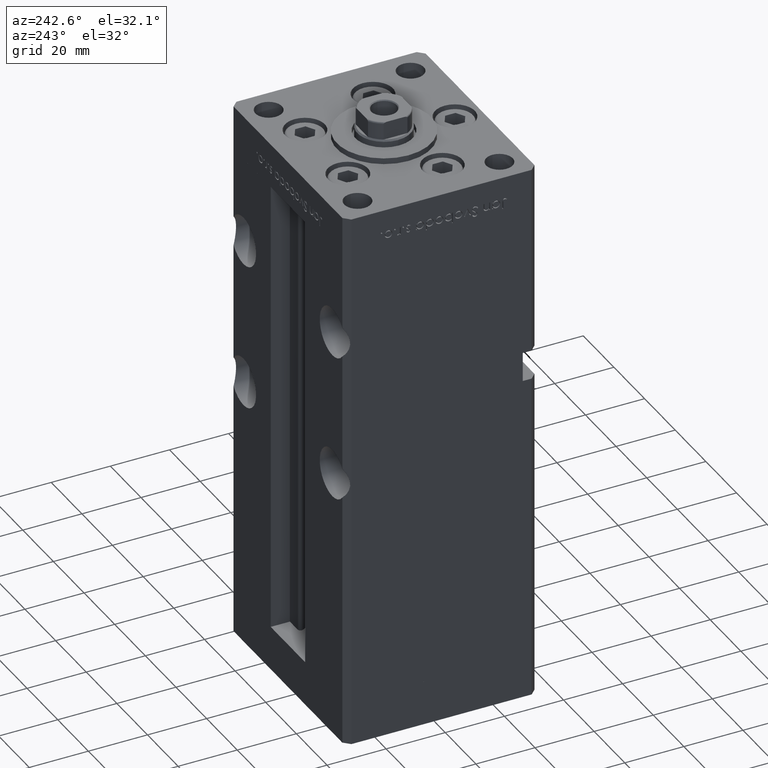
[diagram: clean part render]
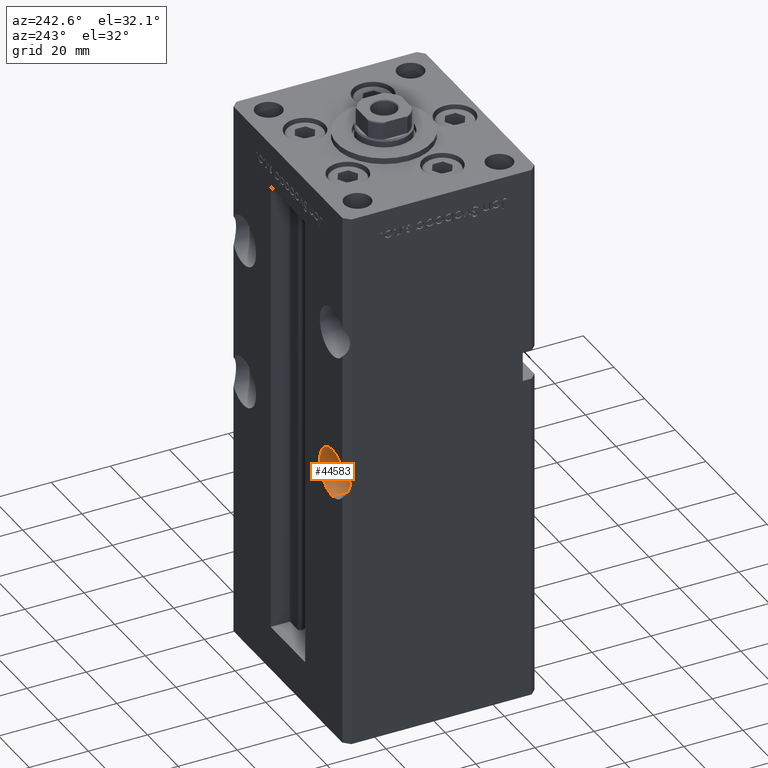
[diagram: same view with one face highlighted and labeled with its STEP entity id]
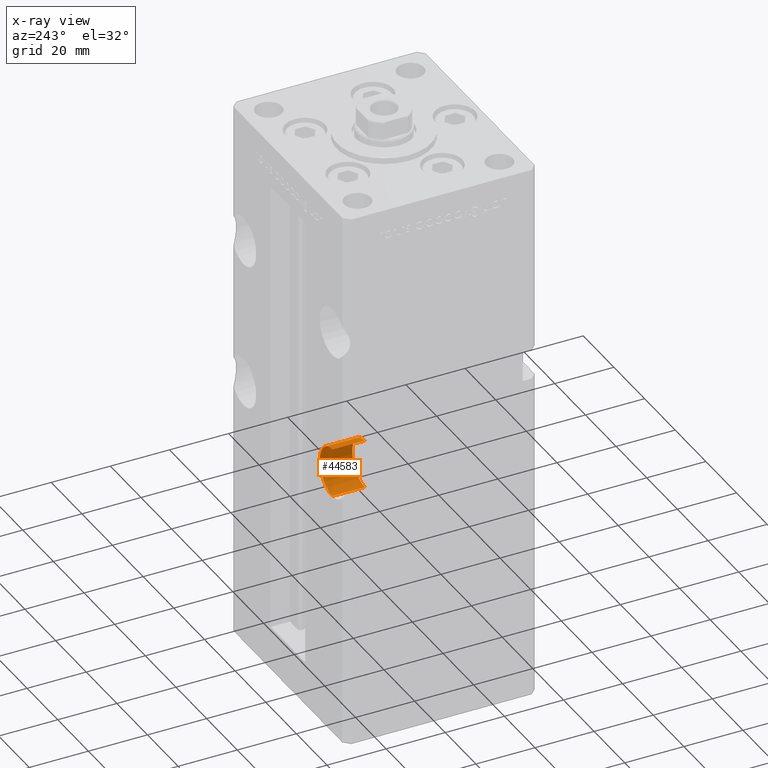
[diagram: x-ray of the same camera — body ghosted, the highlighted face saturated]
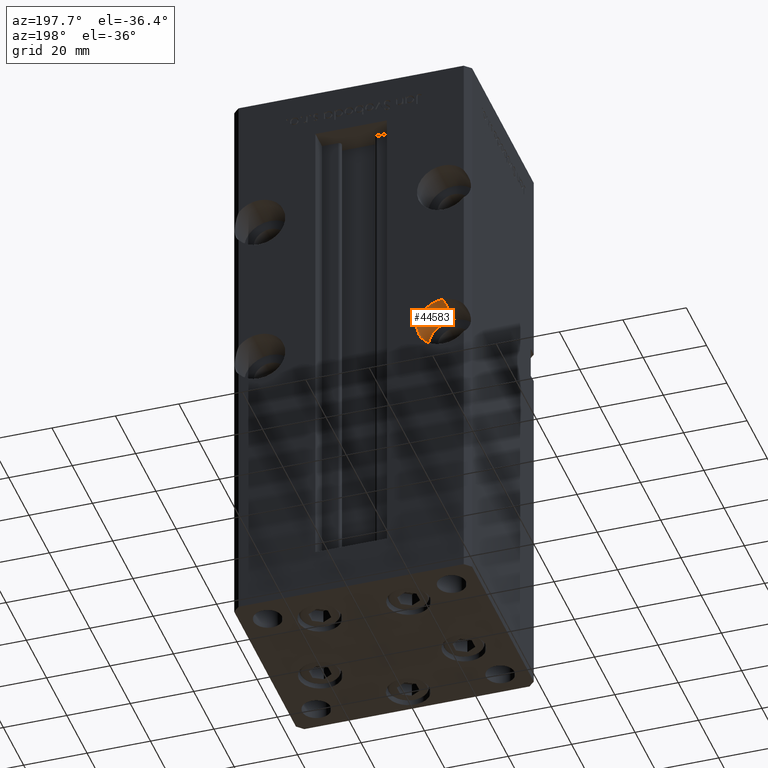
[diagram: same view with one face highlighted and labeled with its STEP entity id]
A machine part, auxiliary view. The second image highlights one B-rep face of the part: STEP entity #44583.
The next image is the same camera in x-ray: the body ghosted, the highlighted face saturated — about 0% of this face is hidden behind the body in this view.
A second angle (auxiliary view) of the same face is appended — the face is thin or edge-on in the first view.
In plain terms, the highlighted cylindrical surface (edge-blend (fillet) strip) has radius 8.25 mm, axis along (0, 1, 0).
Its self-contained STEP definition (entity closure, byte-faithful):
#265 = CYLINDRICAL_SURFACE ( 'NONE', #17140, 8.250000000000007105 ) ;
#2754 = EDGE_CURVE ( 'NONE', #28664, #22703, #35072, .T. ) ;
#3195 = VERTEX_POINT ( 'NONE', #22018 ) ;
#3639 = ORIENTED_EDGE ( 'NONE', *, *, #2754, .T. ) ;
#7450 = ORIENTED_EDGE ( 'NONE', *, *, #24435, .T. ) ;
#10913 = ORIENTED_EDGE ( 'NONE', *, *, #28912, .F. ) ;
#12942 = CIRCLE ( 'NONE', #16374, 8.250000000000007105 ) ;
#15029 = DIRECTION ( 'NONE',  ( 0.000000000000000000, 0.000000000000000000, 1.000000000000000000 ) ) ;
#16186 = EDGE_LOOP ( 'NONE', ( #10913, #21700, #7450, #3639 ) ) ;
#16374 = AXIS2_PLACEMENT_3D ( 'NONE', #31157, #51835, #15029 ) ;
#16804 = VECTOR ( 'NONE', #24151, 1000.000000000000000 ) ;
#17140 = AXIS2_PLACEMENT_3D ( 'NONE', #48692, #32815, #36582 ) ;
#21700 = ORIENTED_EDGE ( 'NONE', *, *, #47748, .F. ) ;
#21999 = VECTOR ( 'NONE', #28798, 1000.000000000000000 ) ;
#22018 = CARTESIAN_POINT ( 'NONE',  ( -28.99999999999999645, 21.50000000000000000, 85.25000000000001421 ) ) ;
#22703 = VERTEX_POINT ( 'NONE', #42974 ) ;
#24151 = DIRECTION ( 'NONE',  ( -0.000000000000000000, 1.000000000000000000, -0.000000000000000000 ) ) ;
#24435 = EDGE_CURVE ( 'NONE', #3195, #28664, #41040, .T. ) ;
#24498 = FACE_OUTER_BOUND ( 'NONE', #16186, .T. ) ;
#26181 = DIRECTION ( 'NONE',  ( 0.000000000000000000, 0.000000000000000000, 1.000000000000000000 ) ) ;
#27374 = AXIS2_PLACEMENT_3D ( 'NONE', #50623, #30729, #26181 ) ;
#28443 = CARTESIAN_POINT ( 'NONE',  ( -28.99999999999999645, 21.50000000000000000, 85.25000000000001421 ) ) ;
#28664 = VERTEX_POINT ( 'NONE', #52068 ) ;
#28798 = DIRECTION ( 'NONE',  ( -0.000000000000000000, 1.000000000000000000, -0.000000000000000000 ) ) ;
#28912 = EDGE_CURVE ( 'NONE', #31162, #22703, #45444, .T. ) ;
#30729 = DIRECTION ( 'NONE',  ( 0.000000000000000000, 1.000000000000000000, 0.000000000000000000 ) ) ;
#31157 = CARTESIAN_POINT ( 'NONE',  ( -28.99999999999999645, 21.50000000000000000, 77.00000000000001421 ) ) ;
#31162 = VERTEX_POINT ( 'NONE', #33807 ) ;
#32815 = DIRECTION ( 'NONE',  ( -0.000000000000000000, 1.000000000000000000, -0.000000000000000000 ) ) ;
#33807 = CARTESIAN_POINT ( 'NONE',  ( -28.99999999999999645, 21.50000000000000000, 68.75000000000000000 ) ) ;
#35072 = CIRCLE ( 'NONE', #27374, 8.250000000000007105 ) ;
#36582 = DIRECTION ( 'NONE',  ( 0.000000000000000000, 0.000000000000000000, 1.000000000000000000 ) ) ;
#41040 = LINE ( 'NONE', #28443, #16804 ) ;
#42974 = CARTESIAN_POINT ( 'NONE',  ( -28.99999999999999645, 32.50000000000000000, 68.75000000000000000 ) ) ;
#44583 = ADVANCED_FACE ( 'NONE', ( #24498 ), #265, .F. ) ;
#45444 = LINE ( 'NONE', #45999, #21999 ) ;
#45999 = CARTESIAN_POINT ( 'NONE',  ( -28.99999999999999645, 21.50000000000000000, 68.75000000000000000 ) ) ;
#47748 = EDGE_CURVE ( 'NONE', #3195, #31162, #12942, .T. ) ;
#48692 = CARTESIAN_POINT ( 'NONE',  ( -28.99999999999999645, 21.50000000000000000, 77.00000000000001421 ) ) ;
#50623 = CARTESIAN_POINT ( 'NONE',  ( -28.99999999999999645, 32.50000000000000000, 77.00000000000001421 ) ) ;
#51835 = DIRECTION ( 'NONE',  ( 0.000000000000000000, 1.000000000000000000, 0.000000000000000000 ) ) ;
#52068 = CARTESIAN_POINT ( 'NONE',  ( -28.99999999999999645, 32.50000000000000000, 85.25000000000001421 ) ) ;